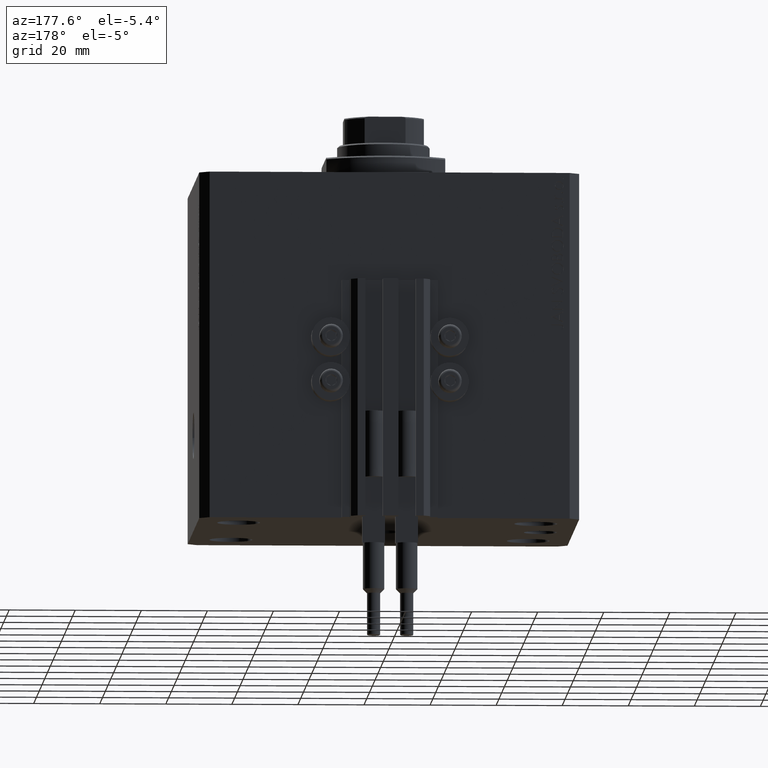
[diagram: clean part render]
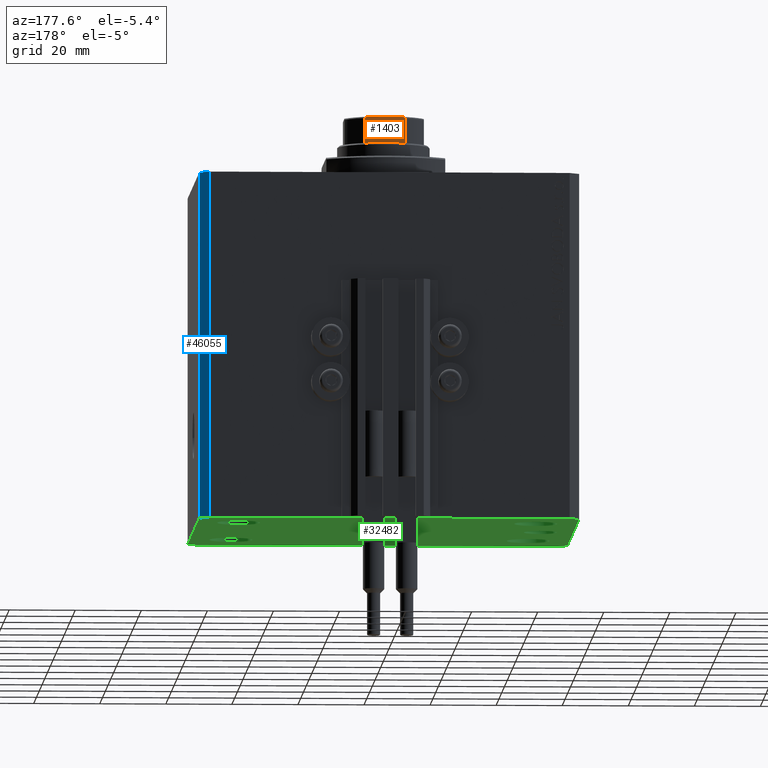
[diagram: same view with three faces highlighted in distinct colors, each labeled with its STEP entity id]
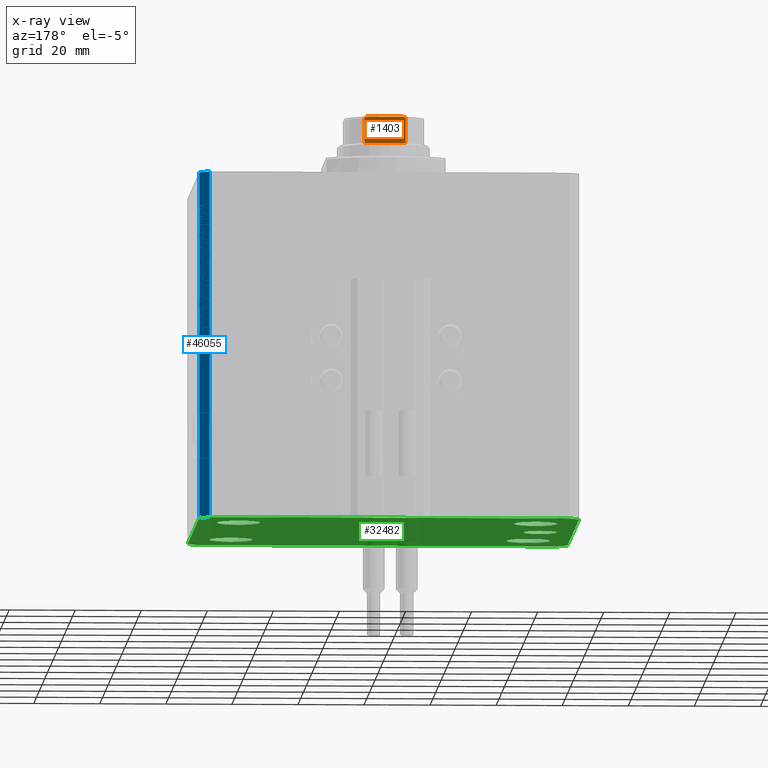
[diagram: x-ray of the same camera — body ghosted, the three highlighted faces saturated]
A machine part, auxiliary view with three faces highlighted in distinct colors.
The next image is the same camera in x-ray (body ghosted, the three faces saturated) — at least one of them is partly hidden behind the body in this view.
Their STEP definitions:

[orange] entity #1403 — the highlighted planar face has unit normal (0, -1, 0).
#612 = CARTESIAN_POINT ( 'NONE',  ( -6.161088279078732910, 12.00000000000000000, 106.7146234191510104 ) ) ;
#854 = CARTESIAN_POINT ( 'NONE',  ( -6.184658438426491323, 12.00000000000000000, 106.6589344020393924 ) ) ;
#945 = CARTESIAN_POINT ( 'NONE',  ( 6.184658438426495763, 12.00000000000000355, 106.6589821493407584 ) ) ;
#1403 = ADVANCED_FACE ( 'NONE', ( #34077 ), #27005, .F. ) ;
#1592 = LINE ( 'NONE', #45915, #8077 ) ;
#2236 = CARTESIAN_POINT ( 'NONE',  ( -11.99999999999999822, 11.99999999999999822, 107.0999999999999943 ) ) ;
#2521 = CARTESIAN_POINT ( 'NONE',  ( -5.900889097622411761, 12.00000000000000178, 106.9429613869932894 ) ) ;
#4095 = DIRECTION ( 'NONE',  ( 7.228014483236695816E-17, -1.000000000000000000, 0.000000000000000000 ) ) ;
#4150 = CARTESIAN_POINT ( 'NONE',  ( -6.184658438426488658, 12.00000000000000000, 99.10000000000006537 ) ) ;
#5942 = CARTESIAN_POINT ( 'NONE',  ( -5.000000000000001776, 11.99999999999999822, 107.0999999999999943 ) ) ;
#8077 = VECTOR ( 'NONE', #38154, 1000.000000000000000 ) ;
#8478 = CARTESIAN_POINT ( 'NONE',  ( 6.160856115322540738, 12.00000000000000355, 106.7149782197479055 ) ) ;
#8690 = CARTESIAN_POINT ( 'NONE',  ( 6.184658438426490434, 11.99999999999999822, -0.001000000000001000089 ) ) ;
#8711 = CARTESIAN_POINT ( 'NONE',  ( 5.230809753656818550, 11.99999999999999289, 107.0999999999999801 ) ) ;
#9378 = ORIENTED_EDGE ( 'NONE', *, *, #47093, .F. ) ;
#9521 = DIRECTION ( 'NONE',  ( -1.000000000000000000, -7.228014483236695816E-17, -0.000000000000000000 ) ) ;
#9956 = EDGE_CURVE ( 'NONE', #11971, #25896, #27320, .T. ) ;
#10402 = VERTEX_POINT ( 'NONE', #4150 ) ;
#11844 = VECTOR ( 'NONE', #16541, 1000.000000000000000 ) ;
#11971 = VERTEX_POINT ( 'NONE', #13561 ) ;
#12357 = CARTESIAN_POINT ( 'NONE',  ( 6.091027642353962435, 12.00000000000000355, 106.8080088155617347 ) ) ;
#12758 = CARTESIAN_POINT ( 'NONE',  ( -5.230795946637842420, 11.99999999999999645, 107.0999999999999943 ) ) ;
#13008 = VERTEX_POINT ( 'NONE', #21320 ) ;
#13561 = CARTESIAN_POINT ( 'NONE',  ( 5.000000000000002665, 12.00000000000000000, 107.0999999999999943 ) ) ;
#13861 = EDGE_CURVE ( 'NONE', #10402, #23616, #35078, .T. ) ;
#14013 = EDGE_CURVE ( 'NONE', #24080, #25896, #38208, .T. ) ;
#15522 = ORIENTED_EDGE ( 'NONE', *, *, #26909, .T. ) ;
#15792 = CARTESIAN_POINT ( 'NONE',  ( 6.184658438426490434, 11.99999999999999822, 106.5999999999999943 ) ) ;
#16541 = DIRECTION ( 'NONE',  ( -0.000000000000000000, -0.000000000000000000, 1.000000000000000000 ) ) ;
#18624 = AXIS2_PLACEMENT_3D ( 'NONE', #41853, #4095, #33848 ) ;
#20178 = CARTESIAN_POINT ( 'NONE',  ( 5.000000000000002665, 12.00000000000000000, 107.0999999999999943 ) ) ;
#21320 = CARTESIAN_POINT ( 'NONE',  ( -5.000000000000001776, 11.99999999999999822, 107.0999999999999943 ) ) ;
#21602 = ORIENTED_EDGE ( 'NONE', *, *, #9956, .T. ) ;
#23616 = VERTEX_POINT ( 'NONE', #35409 ) ;
#24080 = VERTEX_POINT ( 'NONE', #39549 ) ;
#24215 = CARTESIAN_POINT ( 'NONE',  ( -5.792513940493508429, 11.99999999999999822, 106.9846382036009373 ) ) ;
#25896 = VERTEX_POINT ( 'NONE', #42005 ) ;
#26631 = ORIENTED_EDGE ( 'NONE', *, *, #13861, .T. ) ;
#26673 = ORIENTED_EDGE ( 'NONE', *, *, #39993, .T. ) ;
#26909 = EDGE_CURVE ( 'NONE', #23616, #13008, #45173, .T. ) ;
#27005 = PLANE ( 'NONE',  #18624 ) ;
#27320 = B_SPLINE_CURVE_WITH_KNOTS ( 'NONE', 3,
 ( #20178, #8711, #35038, #34334, #41873, #45747, #12357, #8478, #945, #15792 ),
 .UNSPECIFIED., .F., .F.,
 ( 4, 2, 2, 2, 4 ),
 ( 1.734723475976807094E-18, 0.0006877128613558521411, 0.001031569292033771706, 0.001203497507372732573, 0.001375425722711693440 ),
 .UNSPECIFIED. ) ;
#29208 = VECTOR ( 'NONE', #9521, 1000.000000000000000 ) ;
#31785 = CARTESIAN_POINT ( 'NONE',  ( -6.091003570118825650, 11.99999999999999822, 106.8080862465981227 ) ) ;
#33577 = EDGE_LOOP ( 'NONE', ( #9378, #21602, #42801, #26673, #26631, #15522 ) ) ;
#33848 = DIRECTION ( 'NONE',  ( 1.000000000000000000, 7.228014483236695816E-17, 0.000000000000000000 ) ) ;
#34010 = CARTESIAN_POINT ( 'NONE',  ( -6.184658438426490434, 12.00000000000000000, 106.5999999999999943 ) ) ;
#34077 = FACE_OUTER_BOUND ( 'NONE', #33577, .T. ) ;
#34334 = CARTESIAN_POINT ( 'NONE',  ( 5.793822051191360956, 11.99999999999999822, 106.9841735219943359 ) ) ;
#35038 = CARTESIAN_POINT ( 'NONE',  ( 5.459934723612541951, 12.00000000000000000, 107.0794964115812036 ) ) ;
#35078 = LINE ( 'NONE', #39217, #11844 ) ;
#35409 = CARTESIAN_POINT ( 'NONE',  ( -6.184658438426490434, 12.00000000000000000, 106.5999999999999943 ) ) ;
#35909 = CARTESIAN_POINT ( 'NONE',  ( -6.046414714222231979, 11.99999999999999822, 106.8457872300293019 ) ) ;
#37733 = DIRECTION ( 'NONE',  ( -0.000000000000000000, -0.000000000000000000, 1.000000000000000000 ) ) ;
#38154 = DIRECTION ( 'NONE',  ( -1.000000000000000000, -7.228014483236695816E-17, -0.000000000000000000 ) ) ;
#38208 = LINE ( 'NONE', #8690, #43791 ) ;
#39049 = LINE ( 'NONE', #2236, #29208 ) ;
#39217 = CARTESIAN_POINT ( 'NONE',  ( -6.184658438426490434, 12.00000000000000000, -0.001000000000001000089 ) ) ;
#39549 = CARTESIAN_POINT ( 'NONE',  ( 6.184658438426492211, 12.00000000000000178, 99.10000000000006537 ) ) ;
#39993 = EDGE_CURVE ( 'NONE', #24080, #10402, #1592, .T. ) ;
#41853 = CARTESIAN_POINT ( 'NONE',  ( -11.99999999999999822, 11.99999999999999822, 107.0999999999999943 ) ) ;
#41873 = CARTESIAN_POINT ( 'NONE',  ( 5.903192932991098374, 12.00000000000000000, 106.9415152347680333 ) ) ;
#42005 = CARTESIAN_POINT ( 'NONE',  ( 6.184658438426490434, 11.99999999999999822, 106.5999999999999943 ) ) ;
#42801 = ORIENTED_EDGE ( 'NONE', *, *, #14013, .F. ) ;
#43222 = CARTESIAN_POINT ( 'NONE',  ( -5.458892612163326774, 11.99999999999999822, 107.0796099716497736 ) ) ;
#43791 = VECTOR ( 'NONE', #37733, 1000.000000000000000 ) ;
#45173 = B_SPLINE_CURVE_WITH_KNOTS ( 'NONE', 3,
 ( #34010, #854, #612, #31785, #35909, #2521, #24215, #43222, #12758, #5942 ),
 .UNSPECIFIED., .F., .F.,
 ( 4, 2, 2, 2, 4 ),
 ( 0.000000000000000000, 0.0001740189231935435705, 0.0003480378463870871411, 0.0006960756927741721138, 0.001392151385548330567 ),
 .UNSPECIFIED. ) ;
#45747 = CARTESIAN_POINT ( 'NONE',  ( 6.045866546018598520, 12.00000000000000178, 106.8461068616299485 ) ) ;
#45915 = CARTESIAN_POINT ( 'NONE',  ( -11.99999999999999822, 11.99999999999999822, 99.09999999999999432 ) ) ;
#47093 = EDGE_CURVE ( 'NONE', #11971, #13008, #39049, .T. ) ;

[blue] entity #46055 — the highlighted planar face has unit normal (0.7071, 0.7071, 0).
#1826 = CARTESIAN_POINT ( 'NONE',  ( 57.50000000000055422, 41.99999999999997868, 0.000000000000000000 ) ) ;
#1927 = CARTESIAN_POINT ( 'NONE',  ( 57.50000000000055422, 41.99999999999997868, -105.0000000000000000 ) ) ;
#2004 = FACE_OUTER_BOUND ( 'NONE', #18763, .T. ) ;
#3893 = CARTESIAN_POINT ( 'NONE',  ( 54.50000000000059686, 45.00000000000002842, -105.0000000000000000 ) ) ;
#4843 = VECTOR ( 'NONE', #15877, 1000.000000000000000 ) ;
#7505 = ORIENTED_EDGE ( 'NONE', *, *, #14335, .F. ) ;
#7607 = EDGE_CURVE ( 'NONE', #14030, #37371, #31253, .T. ) ;
#8341 = CARTESIAN_POINT ( 'NONE',  ( 57.50000000000055422, 41.99999999999997868, -105.0000000000000000 ) ) ;
#9042 = PLANE ( 'NONE',  #20611 ) ;
#11391 = ORIENTED_EDGE ( 'NONE', *, *, #36148, .F. ) ;
#12524 = DIRECTION ( 'NONE',  ( -0.7071067811865369146, 0.7071067811865581199, 0.000000000000000000 ) ) ;
#13296 = ORIENTED_EDGE ( 'NONE', *, *, #7607, .T. ) ;
#14030 = VERTEX_POINT ( 'NONE', #34544 ) ;
#14335 = EDGE_CURVE ( 'NONE', #20136, #16224, #28386, .T. ) ;
#15877 = DIRECTION ( 'NONE',  ( 0.000000000000000000, 0.000000000000000000, 1.000000000000000000 ) ) ;
#16224 = VERTEX_POINT ( 'NONE', #36720 ) ;
#18763 = EDGE_LOOP ( 'NONE', ( #7505, #11391, #13296, #28969 ) ) ;
#19063 = LINE ( 'NONE', #19537, #4843 ) ;
#19537 = CARTESIAN_POINT ( 'NONE',  ( 54.50000000000059686, 45.00000000000002842, -105.0000000000000000 ) ) ;
#20036 = DIRECTION ( 'NONE',  ( 0.7071067811865582309, 0.7071067811865369146, -0.000000000000000000 ) ) ;
#20136 = VERTEX_POINT ( 'NONE', #45647 ) ;
#20517 = CARTESIAN_POINT ( 'NONE',  ( 57.50000000000055422, 41.99999999999997868, -105.0000000000000000 ) ) ;
#20611 = AXIS2_PLACEMENT_3D ( 'NONE', #20517, #20036, #20762 ) ;
#20762 = DIRECTION ( 'NONE',  ( -0.7071067811865369146, 0.7071067811865582309, 0.000000000000000000 ) ) ;
#27992 = LINE ( 'NONE', #1927, #35180 ) ;
#28386 = LINE ( 'NONE', #1826, #36785 ) ;
#28969 = ORIENTED_EDGE ( 'NONE', *, *, #35818, .T. ) ;
#31253 = LINE ( 'NONE', #8341, #35801 ) ;
#31661 = DIRECTION ( 'NONE',  ( 0.000000000000000000, 0.000000000000000000, 1.000000000000000000 ) ) ;
#34544 = CARTESIAN_POINT ( 'NONE',  ( 57.50000000000055422, 41.99999999999997868, -105.0000000000000000 ) ) ;
#35180 = VECTOR ( 'NONE', #31661, 1000.000000000000000 ) ;
#35801 = VECTOR ( 'NONE', #38085, 1000.000000000000000 ) ;
#35818 = EDGE_CURVE ( 'NONE', #37371, #16224, #19063, .T. ) ;
#36148 = EDGE_CURVE ( 'NONE', #14030, #20136, #27992, .T. ) ;
#36720 = CARTESIAN_POINT ( 'NONE',  ( 54.50000000000059686, 45.00000000000002842, 0.000000000000000000 ) ) ;
#36785 = VECTOR ( 'NONE', #12524, 1000.000000000000000 ) ;
#37371 = VERTEX_POINT ( 'NONE', #3893 ) ;
#38085 = DIRECTION ( 'NONE',  ( -0.7071067811865369146, 0.7071067811865581199, 0.000000000000000000 ) ) ;
#45647 = CARTESIAN_POINT ( 'NONE',  ( 57.50000000000055422, 41.99999999999997868, 0.000000000000000000 ) ) ;
#46055 = ADVANCED_FACE ( 'NONE', ( #2004 ), #9042, .T. ) ;

[green] entity #32482 — the highlighted planar face has unit normal (0, 0, 1).
#15 = VERTEX_POINT ( 'NONE', #5885 ) ;
#215 = CARTESIAN_POINT ( 'NONE',  ( -54.49999999999999289, 45.00000000000000000, -105.0000000000000000 ) ) ;
#1024 = CIRCLE ( 'NONE', #26705, 6.499999999999999112 ) ;
#1627 = ORIENTED_EDGE ( 'NONE', *, *, #42584, .F. ) ;
#1665 = DIRECTION ( 'NONE',  ( -1.000000000000000000, 0.000000000000000000, 0.000000000000000000 ) ) ;
#2446 = VECTOR ( 'NONE', #30759, 1000.000000000000000 ) ;
#2509 = CIRCLE ( 'NONE', #14191, 6.499999999999999112 ) ;
#2534 = ORIENTED_EDGE ( 'NONE', *, *, #35120, .F. ) ;
#2556 = FACE_OUTER_BOUND ( 'NONE', #32078, .T. ) ;
#2698 = EDGE_LOOP ( 'NONE', ( #33773, #20650 ) ) ;
#3039 = PLANE ( 'NONE',  #39741 ) ;
#3141 = ORIENTED_EDGE ( 'NONE', *, *, #38367, .F. ) ;
#3280 = CARTESIAN_POINT ( 'NONE',  ( 0.000000000000000000, 0.000000000000000000, -105.0000000000000000 ) ) ;
#3304 = DIRECTION ( 'NONE',  ( -0.000000000000000000, -0.000000000000000000, -1.000000000000000000 ) ) ;
#3893 = CARTESIAN_POINT ( 'NONE',  ( 54.50000000000059686, 45.00000000000002842, -105.0000000000000000 ) ) ;
#4722 = CARTESIAN_POINT ( 'NONE',  ( -38.50000000000000000, 27.49999999999999645, -105.0000000000000000 ) ) ;
#5328 = CARTESIAN_POINT ( 'NONE',  ( -38.49999999999998579, -27.50000000000000355, -105.0000000000000000 ) ) ;
#5492 = VERTEX_POINT ( 'NONE', #32410 ) ;
#5705 = EDGE_CURVE ( 'NONE', #27221, #12773, #36655, .T. ) ;
#5884 = EDGE_LOOP ( 'NONE', ( #28306, #2534 ) ) ;
#5885 = CARTESIAN_POINT ( 'NONE',  ( -57.49999999999998579, 42.00000000000000711, -105.0000000000000000 ) ) ;
#6345 = VERTEX_POINT ( 'NONE', #43846 ) ;
#6636 = DIRECTION ( 'NONE',  ( -0.000000000000000000, -0.000000000000000000, -1.000000000000000000 ) ) ;
#6693 = FACE_BOUND ( 'NONE', #19547, .T. ) ;
#7171 = AXIS2_PLACEMENT_3D ( 'NONE', #14295, #7695, #37200 ) ;
#7267 = VECTOR ( 'NONE', #30427, 1000.000000000000000 ) ;
#7548 = VERTEX_POINT ( 'NONE', #22501 ) ;
#7583 = CARTESIAN_POINT ( 'NONE',  ( 45.00000000000000000, 27.49999999999999289, -105.0000000000000000 ) ) ;
#7607 = EDGE_CURVE ( 'NONE', #14030, #37371, #31253, .T. ) ;
#7695 = DIRECTION ( 'NONE',  ( -0.000000000000000000, -0.000000000000000000, -1.000000000000000000 ) ) ;
#8341 = CARTESIAN_POINT ( 'NONE',  ( 57.50000000000055422, 41.99999999999997868, -105.0000000000000000 ) ) ;
#8406 = DIRECTION ( 'NONE',  ( -1.000000000000000000, 0.000000000000000000, 0.000000000000000000 ) ) ;
#8623 = VERTEX_POINT ( 'NONE', #37318 ) ;
#9001 = EDGE_CURVE ( 'NONE', #25731, #18349, #26288, .T. ) ;
#9508 = AXIS2_PLACEMENT_3D ( 'NONE', #14088, #28977, #26035 ) ;
#9731 = EDGE_CURVE ( 'NONE', #7548, #6345, #12505, .T. ) ;
#9986 = EDGE_CURVE ( 'NONE', #37604, #37736, #35880, .T. ) ;
#10114 = CARTESIAN_POINT ( 'NONE',  ( -45.00000000000000000, 27.49999999999999645, -105.0000000000000000 ) ) ;
#10148 = AXIS2_PLACEMENT_3D ( 'NONE', #36370, #6636, #21020 ) ;
#10318 = CIRCLE ( 'NONE', #9508, 6.499999999999999112 ) ;
#10588 = DIRECTION ( 'NONE',  ( -1.000000000000000000, -2.546383084002638829E-16, 0.000000000000000000 ) ) ;
#10782 = ORIENTED_EDGE ( 'NONE', *, *, #32746, .F. ) ;
#10907 = ORIENTED_EDGE ( 'NONE', *, *, #13937, .F. ) ;
#11125 = CARTESIAN_POINT ( 'NONE',  ( -5.000000000000000000, 0.000000000000000000, -105.0000000000000000 ) ) ;
#11634 = LINE ( 'NONE', #215, #7267 ) ;
#11716 = AXIS2_PLACEMENT_3D ( 'NONE', #20482, #35347, #35585 ) ;
#12052 = CARTESIAN_POINT ( 'NONE',  ( 57.50000000000000711, -41.99999999999998579, -105.0000000000000000 ) ) ;
#12505 = CIRCLE ( 'NONE', #11716, 4.999999999999997335 ) ;
#12773 = VERTEX_POINT ( 'NONE', #24773 ) ;
#12854 = EDGE_CURVE ( 'NONE', #8623, #20228, #27427, .T. ) ;
#13102 = CARTESIAN_POINT ( 'NONE',  ( -44.99999999999998579, -27.50000000000000355, -105.0000000000000000 ) ) ;
#13284 = AXIS2_PLACEMENT_3D ( 'NONE', #21317, #47362, #27244 ) ;
#13357 = EDGE_CURVE ( 'NONE', #20228, #8623, #2509, .T. ) ;
#13572 = DIRECTION ( 'NONE',  ( 6.443258625056715108E-15, 1.000000000000000000, 0.000000000000000000 ) ) ;
#13885 = LINE ( 'NONE', #24382, #24521 ) ;
#13937 = EDGE_CURVE ( 'NONE', #30728, #26580, #10318, .T. ) ;
#14005 = VERTEX_POINT ( 'NONE', #45727 ) ;
#14023 = DIRECTION ( 'NONE',  ( 1.000000000000000000, 0.000000000000000000, 0.000000000000000000 ) ) ;
#14030 = VERTEX_POINT ( 'NONE', #34544 ) ;
#14088 = CARTESIAN_POINT ( 'NONE',  ( -44.99999999999998579, -27.50000000000000355, -105.0000000000000000 ) ) ;
#14191 = AXIS2_PLACEMENT_3D ( 'NONE', #10114, #3304, #14023 ) ;
#14295 = CARTESIAN_POINT ( 'NONE',  ( -45.00000000000000000, 27.49999999999999645, -105.0000000000000000 ) ) ;
#15713 = ORIENTED_EDGE ( 'NONE', *, *, #16020, .F. ) ;
#16020 = EDGE_CURVE ( 'NONE', #47058, #15, #11634, .T. ) ;
#16261 = LINE ( 'NONE', #45983, #33078 ) ;
#16680 = CARTESIAN_POINT ( 'NONE',  ( 0.000000000000000000, 0.000000000000000000, -105.0000000000000000 ) ) ;
#16892 = CARTESIAN_POINT ( 'NONE',  ( 54.50000000000000711, -44.99999999999998579, -105.0000000000000000 ) ) ;
#17013 = DIRECTION ( 'NONE',  ( 1.000000000000000000, 0.000000000000000000, 0.000000000000000000 ) ) ;
#18139 = DIRECTION ( 'NONE',  ( 0.000000000000000000, 0.000000000000000000, 1.000000000000000000 ) ) ;
#18349 = VERTEX_POINT ( 'NONE', #46954 ) ;
#18362 = ORIENTED_EDGE ( 'NONE', *, *, #42205, .F. ) ;
#18560 = DIRECTION ( 'NONE',  ( -0.000000000000000000, -0.000000000000000000, -1.000000000000000000 ) ) ;
#19131 = VECTOR ( 'NONE', #46612, 1000.000000000000000 ) ;
#19352 = CARTESIAN_POINT ( 'NONE',  ( 51.50000000000000000, 27.49999999999999289, -105.0000000000000000 ) ) ;
#19524 = AXIS2_PLACEMENT_3D ( 'NONE', #23351, #38231, #1665 ) ;
#19547 = EDGE_LOOP ( 'NONE', ( #3141, #18362 ) ) ;
#19596 = AXIS2_PLACEMENT_3D ( 'NONE', #45595, #33946, #26367 ) ;
#20228 = VERTEX_POINT ( 'NONE', #4722 ) ;
#20347 = DIRECTION ( 'NONE',  ( 0.000000000000000000, 0.000000000000000000, -1.000000000000000000 ) ) ;
#20364 = AXIS2_PLACEMENT_3D ( 'NONE', #13102, #27984, #39192 ) ;
#20482 = CARTESIAN_POINT ( 'NONE',  ( -47.50000000000000000, 0.000000000000000000, -105.0000000000000000 ) ) ;
#20650 = ORIENTED_EDGE ( 'NONE', *, *, #9986, .F. ) ;
#21020 = DIRECTION ( 'NONE',  ( 1.000000000000000000, 0.000000000000000000, 0.000000000000000000 ) ) ;
#21163 = CIRCLE ( 'NONE', #19596, 4.999999999999997335 ) ;
#21317 = CARTESIAN_POINT ( 'NONE',  ( 44.99999999999998579, -27.50000000000000355, -105.0000000000000000 ) ) ;
#21569 = FACE_BOUND ( 'NONE', #23425, .T. ) ;
#21763 = ORIENTED_EDGE ( 'NONE', *, *, #25973, .F. ) ;
#22181 = CIRCLE ( 'NONE', #42419, 6.499999999999999112 ) ;
#22501 = CARTESIAN_POINT ( 'NONE',  ( -52.50000000000000000, 0.000000000000000000, -105.0000000000000000 ) ) ;
#22874 = CARTESIAN_POINT ( 'NONE',  ( -54.50000000000000711, -45.00000000000000000, -105.0000000000000000 ) ) ;
#23351 = CARTESIAN_POINT ( 'NONE',  ( 0.000000000000000000, 0.000000000000000000, -105.0000000000000000 ) ) ;
#23423 = CARTESIAN_POINT ( 'NONE',  ( -57.49999999999998579, 42.00000000000000711, -105.0000000000000000 ) ) ;
#23425 = EDGE_LOOP ( 'NONE', ( #47388, #31082 ) ) ;
#23740 = LINE ( 'NONE', #16892, #19131 ) ;
#24093 = CARTESIAN_POINT ( 'NONE',  ( 45.00000000000000000, 27.49999999999999289, -105.0000000000000000 ) ) ;
#24382 = CARTESIAN_POINT ( 'NONE',  ( -57.50000000000000711, -42.00000000000000711, -105.0000000000000000 ) ) ;
#24521 = VECTOR ( 'NONE', #31717, 1000.000000000000114 ) ;
#24773 = CARTESIAN_POINT ( 'NONE',  ( 51.49999999999998579, -27.50000000000000355, -105.0000000000000000 ) ) ;
#25023 = EDGE_CURVE ( 'NONE', #5492, #25731, #13885, .T. ) ;
#25116 = CARTESIAN_POINT ( 'NONE',  ( 38.49999999999998579, -27.50000000000000355, -105.0000000000000000 ) ) ;
#25211 = FACE_BOUND ( 'NONE', #5884, .T. ) ;
#25233 = LINE ( 'NONE', #47154, #26030 ) ;
#25660 = CIRCLE ( 'NONE', #31093, 5.000000000000000000 ) ;
#25731 = VERTEX_POINT ( 'NONE', #40101 ) ;
#25869 = VERTEX_POINT ( 'NONE', #19352 ) ;
#25973 = EDGE_CURVE ( 'NONE', #18349, #31304, #23740, .T. ) ;
#26030 = VECTOR ( 'NONE', #10588, 1000.000000000000000 ) ;
#26035 = DIRECTION ( 'NONE',  ( 1.000000000000000000, 0.000000000000000000, 0.000000000000000000 ) ) ;
#26288 = LINE ( 'NONE', #22874, #47472 ) ;
#26367 = DIRECTION ( 'NONE',  ( -1.000000000000000000, 0.000000000000000000, 0.000000000000000000 ) ) ;
#26580 = VERTEX_POINT ( 'NONE', #5328 ) ;
#26705 = AXIS2_PLACEMENT_3D ( 'NONE', #24093, #38738, #17013 ) ;
#27167 = ORIENTED_EDGE ( 'NONE', *, *, #5705, .F. ) ;
#27221 = VERTEX_POINT ( 'NONE', #25116 ) ;
#27244 = DIRECTION ( 'NONE',  ( 1.000000000000000000, 0.000000000000000000, 0.000000000000000000 ) ) ;
#27427 = CIRCLE ( 'NONE', #7171, 6.499999999999999112 ) ;
#27775 = EDGE_LOOP ( 'NONE', ( #10782, #27167 ) ) ;
#27984 = DIRECTION ( 'NONE',  ( -0.000000000000000000, -0.000000000000000000, -1.000000000000000000 ) ) ;
#28097 = CIRCLE ( 'NONE', #10148, 6.499999999999999112 ) ;
#28306 = ORIENTED_EDGE ( 'NONE', *, *, #9731, .F. ) ;
#28658 = EDGE_CURVE ( 'NONE', #37736, #37604, #25660, .T. ) ;
#28890 = ORIENTED_EDGE ( 'NONE', *, *, #25023, .F. ) ;
#28912 = ORIENTED_EDGE ( 'NONE', *, *, #33731, .F. ) ;
#28977 = DIRECTION ( 'NONE',  ( -0.000000000000000000, -0.000000000000000000, -1.000000000000000000 ) ) ;
#30427 = DIRECTION ( 'NONE',  ( -0.7071067811865483499, -0.7071067811865466846, 0.000000000000000000 ) ) ;
#30728 = VERTEX_POINT ( 'NONE', #35789 ) ;
#30759 = DIRECTION ( 'NONE',  ( -2.478176394252581141E-16, -1.000000000000000000, 0.000000000000000000 ) ) ;
#31082 = ORIENTED_EDGE ( 'NONE', *, *, #12854, .F. ) ;
#31093 = AXIS2_PLACEMENT_3D ( 'NONE', #16680, #20347, #8406 ) ;
#31226 = LINE ( 'NONE', #23423, #2446 ) ;
#31253 = LINE ( 'NONE', #8341, #35801 ) ;
#31304 = VERTEX_POINT ( 'NONE', #12052 ) ;
#31717 = DIRECTION ( 'NONE',  ( 0.7071067811865491270, -0.7071067811865459074, 0.000000000000000000 ) ) ;
#31898 = CARTESIAN_POINT ( 'NONE',  ( 5.000000000000000000, 6.123233995736765296E-16, -105.0000000000000000 ) ) ;
#32078 = EDGE_LOOP ( 'NONE', ( #39346, #35179, #1627, #21763, #37216, #28890, #28912, #15713 ) ) ;
#32301 = FACE_BOUND ( 'NONE', #2698, .T. ) ;
#32410 = CARTESIAN_POINT ( 'NONE',  ( -57.50000000000000711, -42.00000000000000711, -105.0000000000000000 ) ) ;
#32482 = ADVANCED_FACE ( 'NONE', ( #32301, #25211, #36674, #35941, #6693, #21569, #2556 ), #3039, .F. ) ;
#32710 = DIRECTION ( 'NONE',  ( 1.000000000000000000, 0.000000000000000000, 0.000000000000000000 ) ) ;
#32746 = EDGE_CURVE ( 'NONE', #12773, #27221, #28097, .T. ) ;
#33078 = VECTOR ( 'NONE', #13572, 1000.000000000000000 ) ;
#33731 = EDGE_CURVE ( 'NONE', #15, #5492, #31226, .T. ) ;
#33773 = ORIENTED_EDGE ( 'NONE', *, *, #28658, .F. ) ;
#33946 = DIRECTION ( 'NONE',  ( 0.000000000000000000, 0.000000000000000000, -1.000000000000000000 ) ) ;
#34090 = DIRECTION ( 'NONE',  ( 1.000000000000000000, 1.273191542001326317E-16, 0.000000000000000000 ) ) ;
#34544 = CARTESIAN_POINT ( 'NONE',  ( 57.50000000000055422, 41.99999999999997868, -105.0000000000000000 ) ) ;
#35120 = EDGE_CURVE ( 'NONE', #6345, #7548, #21163, .T. ) ;
#35179 = ORIENTED_EDGE ( 'NONE', *, *, #7607, .F. ) ;
#35347 = DIRECTION ( 'NONE',  ( 0.000000000000000000, 0.000000000000000000, -1.000000000000000000 ) ) ;
#35462 = EDGE_CURVE ( 'NONE', #26580, #30728, #37489, .T. ) ;
#35585 = DIRECTION ( 'NONE',  ( -1.000000000000000000, 0.000000000000000000, 0.000000000000000000 ) ) ;
#35789 = CARTESIAN_POINT ( 'NONE',  ( -51.49999999999998579, -27.50000000000000355, -105.0000000000000000 ) ) ;
#35801 = VECTOR ( 'NONE', #38085, 1000.000000000000000 ) ;
#35880 = CIRCLE ( 'NONE', #19524, 5.000000000000000000 ) ;
#35941 = FACE_BOUND ( 'NONE', #27775, .T. ) ;
#36370 = CARTESIAN_POINT ( 'NONE',  ( 44.99999999999998579, -27.50000000000000355, -105.0000000000000000 ) ) ;
#36560 = EDGE_LOOP ( 'NONE', ( #42783, #10907 ) ) ;
#36655 = CIRCLE ( 'NONE', #13284, 6.499999999999999112 ) ;
#36674 = FACE_BOUND ( 'NONE', #36560, .T. ) ;
#37200 = DIRECTION ( 'NONE',  ( 1.000000000000000000, 0.000000000000000000, 0.000000000000000000 ) ) ;
#37216 = ORIENTED_EDGE ( 'NONE', *, *, #9001, .F. ) ;
#37318 = CARTESIAN_POINT ( 'NONE',  ( -51.50000000000000000, 27.49999999999999645, -105.0000000000000000 ) ) ;
#37371 = VERTEX_POINT ( 'NONE', #3893 ) ;
#37489 = CIRCLE ( 'NONE', #20364, 6.499999999999999112 ) ;
#37604 = VERTEX_POINT ( 'NONE', #31898 ) ;
#37736 = VERTEX_POINT ( 'NONE', #11125 ) ;
#38085 = DIRECTION ( 'NONE',  ( -0.7071067811865369146, 0.7071067811865581199, 0.000000000000000000 ) ) ;
#38231 = DIRECTION ( 'NONE',  ( 0.000000000000000000, 0.000000000000000000, -1.000000000000000000 ) ) ;
#38367 = EDGE_CURVE ( 'NONE', #25869, #14005, #1024, .T. ) ;
#38738 = DIRECTION ( 'NONE',  ( -0.000000000000000000, -0.000000000000000000, -1.000000000000000000 ) ) ;
#39192 = DIRECTION ( 'NONE',  ( 1.000000000000000000, 0.000000000000000000, 0.000000000000000000 ) ) ;
#39288 = CARTESIAN_POINT ( 'NONE',  ( -54.49999999999999289, 45.00000000000000000, -105.0000000000000000 ) ) ;
#39346 = ORIENTED_EDGE ( 'NONE', *, *, #44917, .F. ) ;
#39741 = AXIS2_PLACEMENT_3D ( 'NONE', #3280, #18139, #47137 ) ;
#40101 = CARTESIAN_POINT ( 'NONE',  ( -54.50000000000000711, -45.00000000000000000, -105.0000000000000000 ) ) ;
#42205 = EDGE_CURVE ( 'NONE', #14005, #25869, #22181, .T. ) ;
#42419 = AXIS2_PLACEMENT_3D ( 'NONE', #7583, #18560, #32710 ) ;
#42584 = EDGE_CURVE ( 'NONE', #31304, #14030, #16261, .T. ) ;
#42783 = ORIENTED_EDGE ( 'NONE', *, *, #35462, .F. ) ;
#43846 = CARTESIAN_POINT ( 'NONE',  ( -42.50000000000000000, 6.123233995736762338E-16, -105.0000000000000000 ) ) ;
#44917 = EDGE_CURVE ( 'NONE', #37371, #47058, #25233, .T. ) ;
#45595 = CARTESIAN_POINT ( 'NONE',  ( -47.50000000000000000, 0.000000000000000000, -105.0000000000000000 ) ) ;
#45727 = CARTESIAN_POINT ( 'NONE',  ( 38.50000000000000000, 27.49999999999999289, -105.0000000000000000 ) ) ;
#45983 = CARTESIAN_POINT ( 'NONE',  ( 57.50000000000000711, -41.99999999999998579, -105.0000000000000000 ) ) ;
#46612 = DIRECTION ( 'NONE',  ( 0.7071067811865483499, 0.7071067811865466846, 0.000000000000000000 ) ) ;
#46954 = CARTESIAN_POINT ( 'NONE',  ( 54.50000000000000711, -44.99999999999998579, -105.0000000000000000 ) ) ;
#47058 = VERTEX_POINT ( 'NONE', #39288 ) ;
#47137 = DIRECTION ( 'NONE',  ( 1.000000000000000000, 0.000000000000000000, -0.000000000000000000 ) ) ;
#47154 = CARTESIAN_POINT ( 'NONE',  ( 54.50000000000059686, 45.00000000000002842, -105.0000000000000000 ) ) ;
#47362 = DIRECTION ( 'NONE',  ( -0.000000000000000000, -0.000000000000000000, -1.000000000000000000 ) ) ;
#47388 = ORIENTED_EDGE ( 'NONE', *, *, #13357, .F. ) ;
#47472 = VECTOR ( 'NONE', #34090, 1000.000000000000000 ) ;